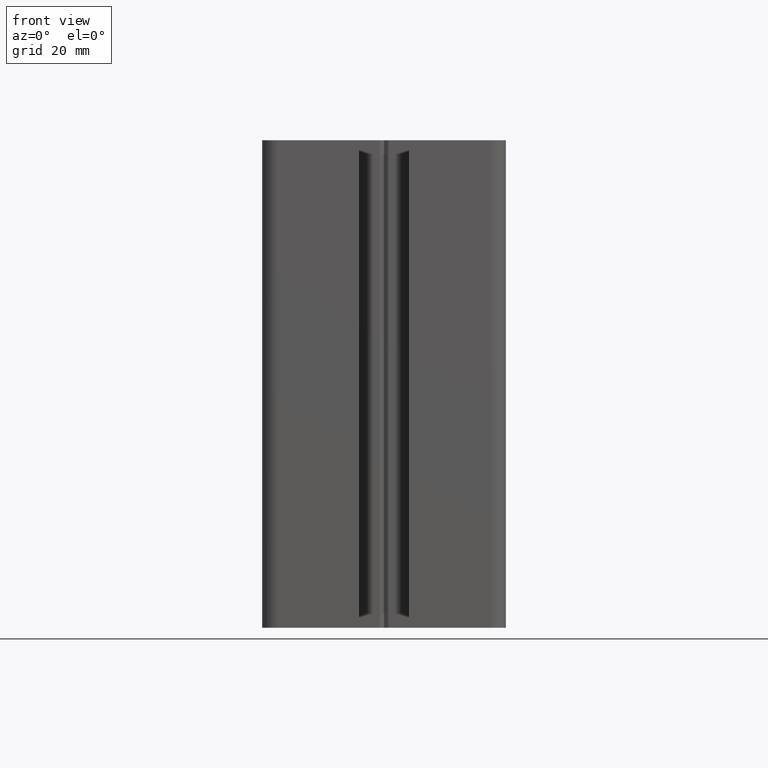
[diagram: clean part render]
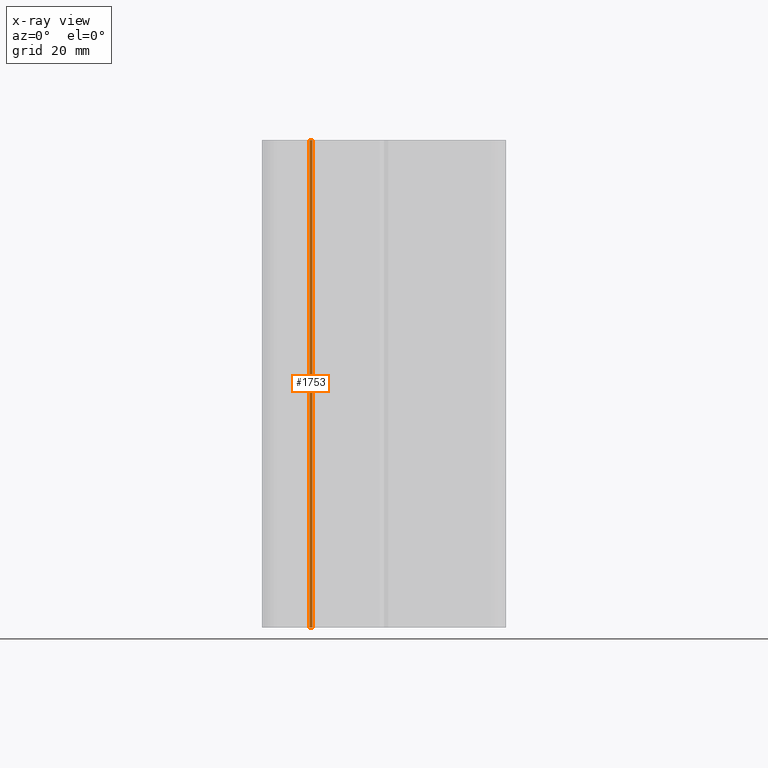
[diagram: x-ray — body ghosted, one internal face saturated and labeled with its STEP entity id]
A machine part, front view, then the same camera in x-ray: the body is ghosted and one INTERNAL B-rep face — a face not visible from any outside direction — is saturated and labeled: STEP entity #1753.
In plain terms, the highlighted cylindrical surface (edge-blend (fillet) strip) has radius 0.5 mm, axis along (-0, -0, -1).
Its self-contained STEP definition (entity closure, byte-faithful):
#578 = VERTEX_POINT ( 'NONE', #5822 ) ;
#580 = EDGE_CURVE ( 'NONE', #578, #581, #5817, .T. ) ;
#581 = VERTEX_POINT ( 'NONE', #5774 ) ;
#1691 = EDGE_CURVE ( 'NONE', #4486, #581, #7575, .T. ) ;
#1693 = ORIENTED_EDGE ( 'NONE', *, *, #1691, .T. ) ;
#1704 = ORIENTED_EDGE ( 'NONE', *, *, #1712, .F. ) ;
#1705 = EDGE_LOOP ( 'NONE', ( #1751, #1704, #1755, #1693 ) ) ;
#1712 = EDGE_CURVE ( 'NONE', #4475, #578, #7556, .T. ) ;
#1751 = ORIENTED_EDGE ( 'NONE', *, *, #580, .F. ) ;
#1753 = ADVANCED_FACE ( 'NONE', ( #7608 ), #7669, .T. ) ;
#1755 = ORIENTED_EDGE ( 'NONE', *, *, #4547, .T. ) ;
#4475 = VERTEX_POINT ( 'NONE', #11885 ) ;
#4486 = VERTEX_POINT ( 'NONE', #11922 ) ;
#4547 = EDGE_CURVE ( 'NONE', #4475, #4486, #12035, .T. ) ;
#5774 = CARTESIAN_POINT ( 'NONE',  ( -14.69691329244895100, 37.92914607618172300, 0.0000000000000000000 ) ) ;
#5812 = DIRECTION ( 'NONE',  ( 1.000000000000000000, 0.0000000000000000000, 0.0000000000000000000 ) ) ;
#5813 = DIRECTION ( 'NONE',  ( -0.0000000000000000000, -0.0000000000000000000, -1.000000000000000000 ) ) ;
#5814 = CARTESIAN_POINT ( 'NONE',  ( -15.05046674197396000, 37.57559274452019300, 0.0000000000000000000 ) ) ;
#5815 = AXIS2_PLACEMENT_3D ( 'NONE', #5814, #5813, #5812 ) ;
#5817 = CIRCLE ( 'NONE', #5815, 0.5000000000000004400 ) ;
#5822 = CARTESIAN_POINT ( 'NONE',  ( -15.27315158361268900, 38.02326613138201600, 0.0000000000000000000 ) ) ;
#7551 = DIRECTION ( 'NONE',  ( -0.0000000000000000000, -0.0000000000000000000, -1.000000000000000000 ) ) ;
#7552 = VECTOR ( 'NONE', #7551, 1000.000000000000000 ) ;
#7553 = CARTESIAN_POINT ( 'NONE',  ( -15.27315158361268900, 38.02326613138201600, 100.0000000000000000 ) ) ;
#7556 = LINE ( 'NONE', #7553, #7552 ) ;
#7572 = DIRECTION ( 'NONE',  ( -0.0000000000000000000, -0.0000000000000000000, -1.000000000000000000 ) ) ;
#7573 = VECTOR ( 'NONE', #7572, 1000.000000000000000 ) ;
#7574 = CARTESIAN_POINT ( 'NONE',  ( -14.69691329244895100, 37.92914607618172300, 100.0000000000000000 ) ) ;
#7575 = LINE ( 'NONE', #7574, #7573 ) ;
#7608 = FACE_OUTER_BOUND ( 'NONE', #1705, .T. ) ;
#7610 = AXIS2_PLACEMENT_3D ( 'NONE', #7612, #7663, #7659 ) ;
#7612 = CARTESIAN_POINT ( 'NONE',  ( -15.05046674197396000, 37.57559274452019300, 100.0000000000000000 ) ) ;
#7659 = DIRECTION ( 'NONE',  ( -1.000000000000000000, 0.0000000000000000000, 0.0000000000000000000 ) ) ;
#7663 = DIRECTION ( 'NONE',  ( -0.0000000000000000000, -0.0000000000000000000, -1.000000000000000000 ) ) ;
#7669 = CYLINDRICAL_SURFACE ( 'NONE', #7610, 0.5000000000000004400 ) ;
#11885 = CARTESIAN_POINT ( 'NONE',  ( -15.27315158361268900, 38.02326613138201600, 100.0000000000000000 ) ) ;
#11922 = CARTESIAN_POINT ( 'NONE',  ( -14.69691329244895100, 37.92914607618172300, 100.0000000000000000 ) ) ;
#12025 = DIRECTION ( 'NONE',  ( -0.0000000000000000000, -0.0000000000000000000, -1.000000000000000000 ) ) ;
#12026 = CARTESIAN_POINT ( 'NONE',  ( -15.05046674197396000, 37.57559274452019300, 100.0000000000000000 ) ) ;
#12027 = AXIS2_PLACEMENT_3D ( 'NONE', #12026, #12025, #12077 ) ;
#12035 = CIRCLE ( 'NONE', #12027, 0.5000000000000004400 ) ;
#12077 = DIRECTION ( 'NONE',  ( 1.000000000000000000, 0.0000000000000000000, 0.0000000000000000000 ) ) ;